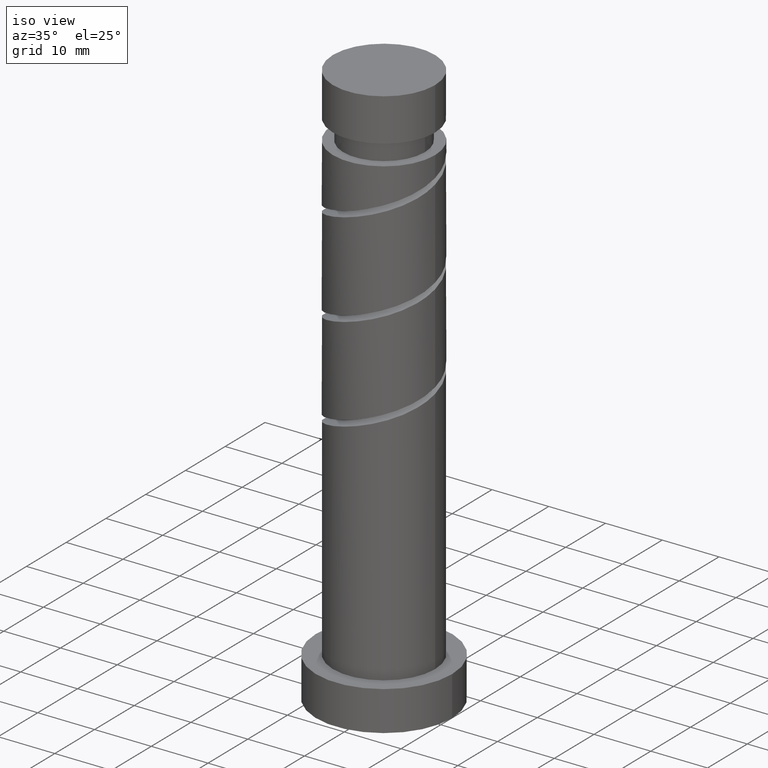
[diagram: clean part render]
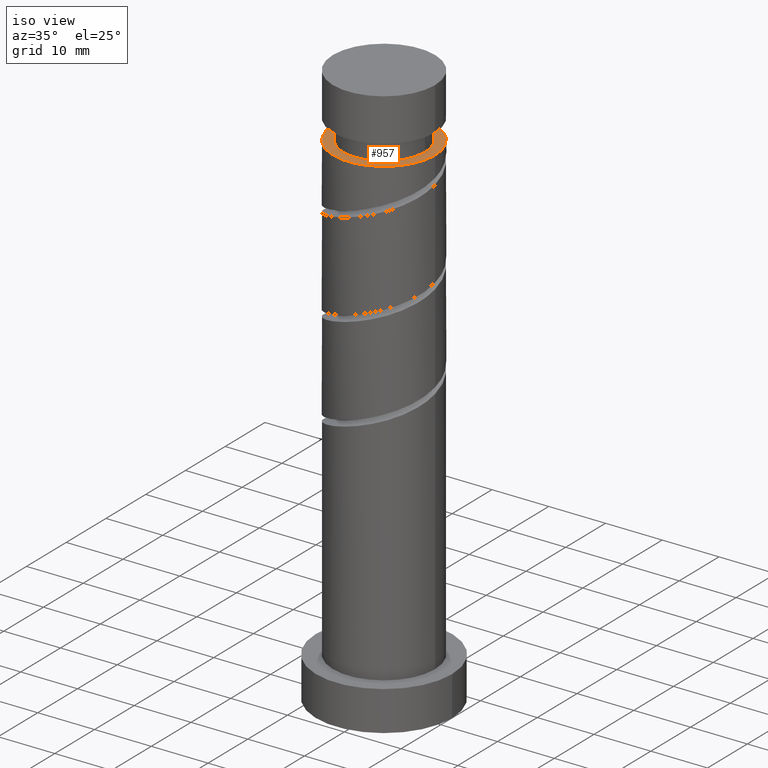
[diagram: same view with one face highlighted and labeled with its STEP entity id]
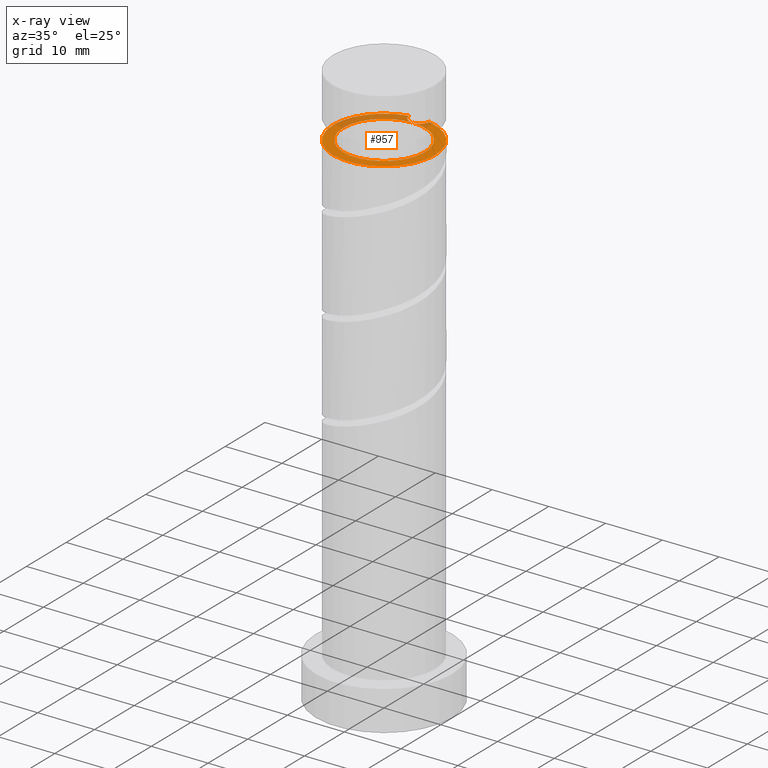
[diagram: x-ray of the same camera — body ghosted, the highlighted face saturated]
A machine part, iso view. The second image highlights one B-rep face of the part: STEP entity #957.
The next image is the same camera in x-ray: the body ghosted, the highlighted face saturated — about 26% of this face is hidden behind the body in this view.
In plain terms, the highlighted planar face has unit normal (-0, 0, -1).
Its self-contained STEP definition (entity closure, byte-faithful):
#5 = CARTESIAN_POINT ( 'NONE',  ( 9.000000000000001776, 1.102182119232617714E-15, 88.84664318135318695 ) ) ;
#13 = VERTEX_POINT ( 'NONE', #345 ) ;
#29 = CARTESIAN_POINT ( 'NONE',  ( 0.000000000000000000, 7.200000000000001954, 88.84664318135318695 ) ) ;
#31 = ORIENTED_EDGE ( 'NONE', *, *, #1328, .F. ) ;
#53 = CIRCLE ( 'NONE', #456, 1.800000000000000044 ) ;
#62 = CARTESIAN_POINT ( 'NONE',  ( -1.647987302177966740E-14, 9.000000000000001776, 88.84664318135318695 ) ) ;
#77 = CIRCLE ( 'NONE', #549, 9.000000000000001776 ) ;
#127 = AXIS2_PLACEMENT_3D ( 'NONE', #29, #489, #594 ) ;
#176 = DIRECTION ( 'NONE',  ( -1.000000000000000000, 0.000000000000000000, 0.000000000000000000 ) ) ;
#193 = CIRCLE ( 'NONE', #823, 7.200000000000001954 ) ;
#208 = DIRECTION ( 'NONE',  ( -1.000000000000000000, 0.000000000000000000, 0.000000000000000000 ) ) ;
#212 = DIRECTION ( 'NONE',  ( -1.000000000000000000, 0.000000000000000000, 0.000000000000000000 ) ) ;
#250 = ORIENTED_EDGE ( 'NONE', *, *, #369, .T. ) ;
#252 = EDGE_LOOP ( 'NONE', ( #1366, #31, #528, #1362, #691, #666, #250, #578 ) ) ;
#261 = DIRECTION ( 'NONE',  ( -0.000000000000000000, -0.000000000000000000, -1.000000000000000000 ) ) ;
#268 = CIRCLE ( 'NONE', #1303, 9.000000000000001776 ) ;
#285 = VERTEX_POINT ( 'NONE', #1307 ) ;
#314 = CARTESIAN_POINT ( 'NONE',  ( 0.000000000000000000, 0.000000000000000000, 88.84664318135318695 ) ) ;
#345 = CARTESIAN_POINT ( 'NONE',  ( 7.200000000000001954, 8.817456953860946247E-16, 88.84664318135318695 ) ) ;
#354 = EDGE_CURVE ( 'NONE', #681, #285, #574, .T. ) ;
#369 = EDGE_CURVE ( 'NONE', #13, #1150, #919, .T. ) ;
#388 = CARTESIAN_POINT ( 'NONE',  ( 0.000000000000000000, 0.000000000000000000, 88.84664318135318695 ) ) ;
#417 = CARTESIAN_POINT ( 'NONE',  ( -1.790977386791914316, 8.820000000000009166, 88.84664318135321537 ) ) ;
#456 = AXIS2_PLACEMENT_3D ( 'NONE', #62, #513, #1433 ) ;
#489 = DIRECTION ( 'NONE',  ( -0.000000000000000000, 0.000000000000000000, -1.000000000000000000 ) ) ;
#504 = CIRCLE ( 'NONE', #1010, 7.200000000000001954 ) ;
#509 = EDGE_CURVE ( 'NONE', #717, #681, #53, .T. ) ;
#513 = DIRECTION ( 'NONE',  ( -0.000000000000000000, 0.000000000000000000, 1.000000000000000000 ) ) ;
#528 = ORIENTED_EDGE ( 'NONE', *, *, #1105, .F. ) ;
#546 = AXIS2_PLACEMENT_3D ( 'NONE', #630, #261, #1080 ) ;
#549 = AXIS2_PLACEMENT_3D ( 'NONE', #388, #852, #176 ) ;
#574 = CIRCLE ( 'NONE', #764, 1.800000000000000044 ) ;
#578 = ORIENTED_EDGE ( 'NONE', *, *, #1216, .T. ) ;
#594 = DIRECTION ( 'NONE',  ( -1.000000000000000000, 0.000000000000000000, 0.000000000000000000 ) ) ;
#617 = EDGE_CURVE ( 'NONE', #681, #13, #504, .T. ) ;
#618 = DIRECTION ( 'NONE',  ( -0.000000000000000000, 0.000000000000000000, 1.000000000000000000 ) ) ;
#630 = CARTESIAN_POINT ( 'NONE',  ( 0.000000000000000000, 0.000000000000000000, 88.84664318135318695 ) ) ;
#666 = ORIENTED_EDGE ( 'NONE', *, *, #617, .T. ) ;
#680 = DIRECTION ( 'NONE',  ( -1.000000000000000000, 0.000000000000000000, 0.000000000000000000 ) ) ;
#681 = VERTEX_POINT ( 'NONE', #1444 ) ;
#691 = ORIENTED_EDGE ( 'NONE', *, *, #354, .F. ) ;
#717 = VERTEX_POINT ( 'NONE', #417 ) ;
#763 = VERTEX_POINT ( 'NONE', #895 ) ;
#764 = AXIS2_PLACEMENT_3D ( 'NONE', #1414, #618, #1291 ) ;
#770 = CARTESIAN_POINT ( 'NONE',  ( 0.000000000000000000, 0.000000000000000000, 88.84664318135318695 ) ) ;
#823 = AXIS2_PLACEMENT_3D ( 'NONE', #314, #1231, #680 ) ;
#852 = DIRECTION ( 'NONE',  ( -0.000000000000000000, -0.000000000000000000, -1.000000000000000000 ) ) ;
#895 = CARTESIAN_POINT ( 'NONE',  ( -9.000000000000001776, 0.000000000000000000, 88.84664318135318695 ) ) ;
#906 = DIRECTION ( 'NONE',  ( -0.000000000000000000, -0.000000000000000000, -1.000000000000000000 ) ) ;
#914 = CARTESIAN_POINT ( 'NONE',  ( 0.000000000000000000, 0.000000000000000000, 88.84664318135318695 ) ) ;
#915 = VERTEX_POINT ( 'NONE', #5 ) ;
#919 = CIRCLE ( 'NONE', #546, 7.200000000000001954 ) ;
#957 = ADVANCED_FACE ( 'NONE', ( #1266 ), #1170, .F. ) ;
#996 = DIRECTION ( 'NONE',  ( -0.000000000000000000, -0.000000000000000000, -1.000000000000000000 ) ) ;
#1010 = AXIS2_PLACEMENT_3D ( 'NONE', #1120, #996, #212 ) ;
#1080 = DIRECTION ( 'NONE',  ( -1.000000000000000000, 0.000000000000000000, 0.000000000000000000 ) ) ;
#1103 = AXIS2_PLACEMENT_3D ( 'NONE', #770, #1344, #208 ) ;
#1105 = EDGE_CURVE ( 'NONE', #915, #763, #77, .T. ) ;
#1120 = CARTESIAN_POINT ( 'NONE',  ( 0.000000000000000000, 0.000000000000000000, 88.84664318135318695 ) ) ;
#1150 = VERTEX_POINT ( 'NONE', #1476 ) ;
#1157 = CIRCLE ( 'NONE', #1103, 9.000000000000001776 ) ;
#1170 = PLANE ( 'NONE',  #127 ) ;
#1197 = EDGE_CURVE ( 'NONE', #285, #915, #268, .T. ) ;
#1216 = EDGE_CURVE ( 'NONE', #1150, #681, #193, .T. ) ;
#1231 = DIRECTION ( 'NONE',  ( -0.000000000000000000, -0.000000000000000000, -1.000000000000000000 ) ) ;
#1266 = FACE_OUTER_BOUND ( 'NONE', #252, .T. ) ;
#1291 = DIRECTION ( 'NONE',  ( -1.000000000000000000, -1.927470528863118950E-15, 0.000000000000000000 ) ) ;
#1303 = AXIS2_PLACEMENT_3D ( 'NONE', #914, #906, #1368 ) ;
#1307 = CARTESIAN_POINT ( 'NONE',  ( 1.790977386791917425, 8.820000000000002061, 88.84664318135318695 ) ) ;
#1328 = EDGE_CURVE ( 'NONE', #763, #717, #1157, .T. ) ;
#1344 = DIRECTION ( 'NONE',  ( -0.000000000000000000, -0.000000000000000000, -1.000000000000000000 ) ) ;
#1362 = ORIENTED_EDGE ( 'NONE', *, *, #1197, .F. ) ;
#1366 = ORIENTED_EDGE ( 'NONE', *, *, #509, .F. ) ;
#1368 = DIRECTION ( 'NONE',  ( -1.000000000000000000, 0.000000000000000000, 0.000000000000000000 ) ) ;
#1414 = CARTESIAN_POINT ( 'NONE',  ( -1.647987302177966740E-14, 9.000000000000001776, 88.84664318135318695 ) ) ;
#1433 = DIRECTION ( 'NONE',  ( -1.000000000000000000, -1.927470528863118950E-15, 0.000000000000000000 ) ) ;
#1444 = CARTESIAN_POINT ( 'NONE',  ( -1.318389841742373550E-14, 7.200000000000001954, 88.84664318135318695 ) ) ;
#1476 = CARTESIAN_POINT ( 'NONE',  ( -7.200000000000001954, 0.000000000000000000, 88.84664318135318695 ) ) ;